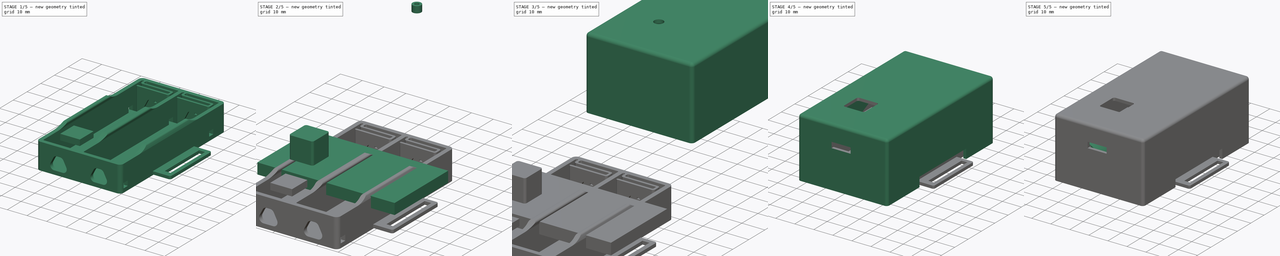
[diagram: build sequence overview — one tinted view per stage of 5, left to right]
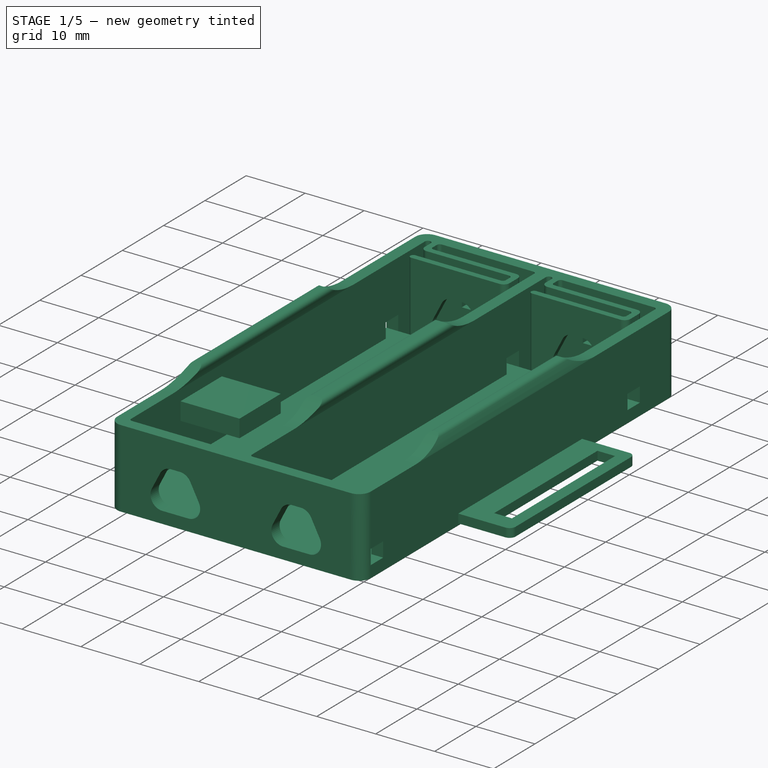
[diagram: stage 1 of 5 — iso view after this stage's code; geometry added in this stage tinted green]
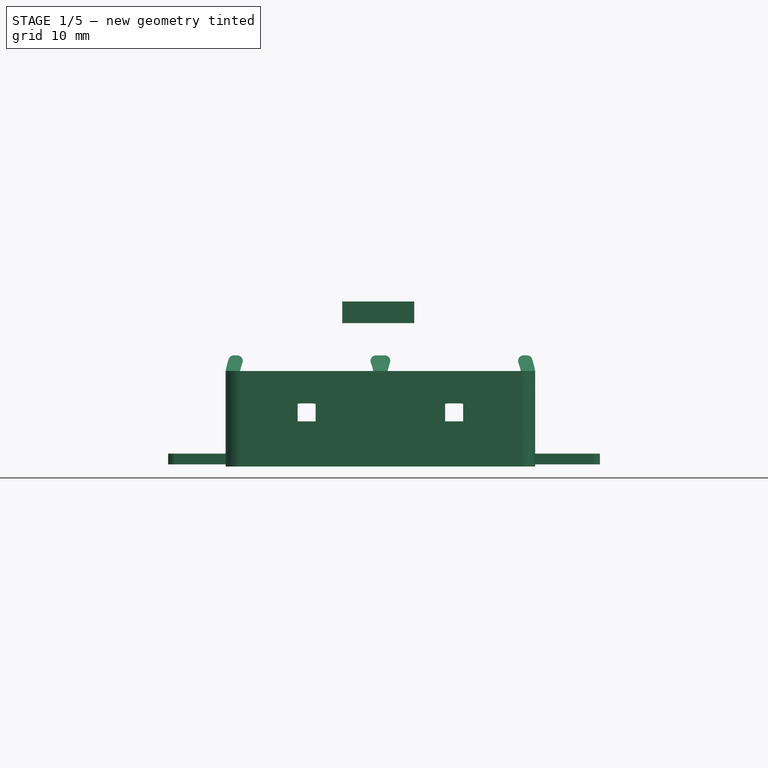
[diagram: stage 1 of 5 — front view after this stage's code; geometry added in this stage tinted green]
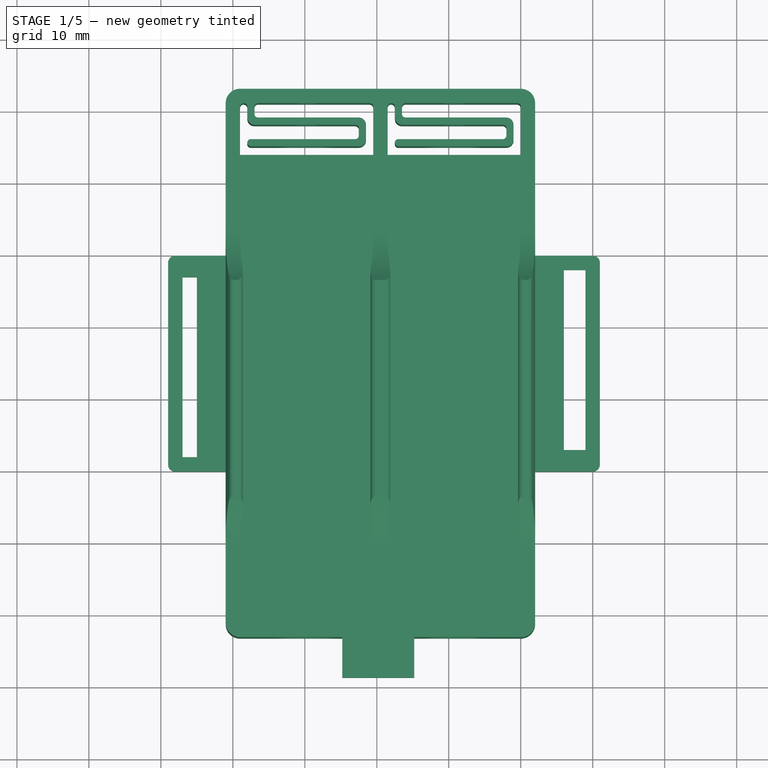
[diagram: stage 1 of 5 — top view after this stage's code; geometry added in this stage tinted green]
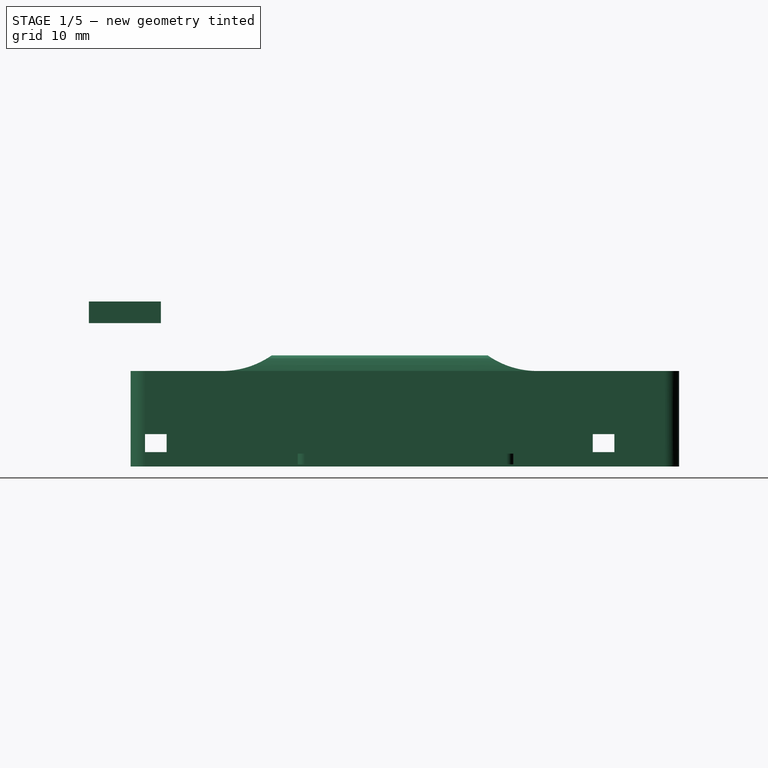
[diagram: stage 1 of 5 — right view after this stage's code; geometry added in this stage tinted green]
FCSTD DOCUMENT  (FreeCAD 0.15R4671 (Git))
Label: porta_baterias_arduino
License: All rights reserved
LicenseURL: http://en.wikipedia.org/wiki/All_rights_reserved
objects: Sketcher::SketchObject×9, Part::Extrusion×6, App::FeaturePython×4, Part::Cut×4, Part::MultiFuse×3, PartDesign::Pad×2, Part::Fillet×2, App::VRMLObject×1, Part::Thickness×1, Part::Cylinder×1, Part::Feature×1, Part::Box×1, App::MeasureDistance×1
note: 32 computed .brp shape members not serialized (recipe doc carries the construction recipe); baked Part::Feature solids carry a one-line shape summary decoded from their .brp

FEATURE [Sketcher::SketchObject] Sketch006
  Placement = pos=(0,0,0.3) rot=(0,0,1;0rad)
  sketch-geometry (12):
    g0: LineSegment StartX=-19 StartY=-80 StartZ=0 EndX=41 EndY=-80 EndZ=0
    g1: LineSegment StartX=41 StartY=-80 StartZ=0 EndX=41 EndY=-110 EndZ=0
    g2: LineSegment StartX=41 StartY=-110 StartZ=0 EndX=-19 EndY=-110 EndZ=0
    g3: LineSegment StartX=-19 StartY=-110 StartZ=0 EndX=-19 EndY=-80 EndZ=0
    g4: LineSegment StartX=39 StartY=-82 StartZ=0 EndX=36 EndY=-82 EndZ=0
    g5: LineSegment StartX=36 StartY=-82 StartZ=0 EndX=36 EndY=-107 EndZ=0
    g6: LineSegment StartX=36 StartY=-107 StartZ=0 EndX=39 EndY=-107 EndZ=0
    g7: LineSegment StartX=39 StartY=-107 StartZ=0 EndX=39 EndY=-82 EndZ=0
    g8: LineSegment StartX=-17 StartY=-83 StartZ=0 EndX=-15 EndY=-83 EndZ=0
    g9: LineSegment StartX=-15 StartY=-83 StartZ=0 EndX=-15 EndY=-108 EndZ=0
    g10: LineSegment StartX=-15 StartY=-108 StartZ=0 EndX=-17 EndY=-108 EndZ=0
    g11: LineSegment StartX=-17 StartY=-108 StartZ=0 EndX=-17 EndY=-83 EndZ=0
  constraints (36):
    c: Coincident(g0,g1)
    c: Coincident(g1,g2)
    c: Coincident(g2,g3)
    c: Coincident(g3,g0)
    c: Horizontal(g0)
    c: Horizontal(g2)
    c: Vertical(g1)
    c: Vertical(g3)
    c: DistanceY(g1) = -30
    c: DistanceX(g0) = 60
    c: DistanceX(g-1,g0) = -19
    c: DistanceY(g-1,g0) = -80
    c: Coincident(g4,g5)
    c: Coincident(g5,g6)
    c: Coincident(g6,g7)
    c: Coincident(g7,g4)
    c: Horizontal(g4)
    c: Horizontal(g6)
    c: Vertical(g5)
    c: Vertical(g7)
    c: DistanceX(g4,g0) = 2
    c: DistanceX(g4) = -3
    c: DistanceY(g7) = 25
    c: Distance(g4,g0) = 2
    c: Coincident(g8,g9)
    c: Coincident(g9,g10)
    c: Coincident(g10,g11)
    c: Coincident(g11,g8)
    c: Horizontal(g8)
    c: Horizontal(g10)
    c: Vertical(g9)
    c: Vertical(g11)
    c: DistanceX(g8) = 2
    c: Distance(g11) = 25
    c: DistanceY(g10,g2) = -2
    c: DistanceX(g8,g0) = -2
FEATURE [Part::Extrusion] Extrude002
  Base = -> Sketch006
  Dir = (0,0,1.5)
  Solid = true
FEATURE [Part::Fillet] Fillet
  Base = -> Extrude002
  Edges = 4 edges r=1: [Edge1,Edge2,Edge5,Edge8]
  Placement = pos=(0,0,-9.09421) rot=(0,0,1;0rad)
FEATURE [Sketcher::SketchObject] Sketch011
  Placement = pos=(0,-139,0) rot=(1,0,0;1.5708rad)
  sketch-geometry (4):
    g0: LineSegment StartX=5.19784 StartY=13.8381 StartZ=0 EndX=15.1978 EndY=13.8381 EndZ=0
    g1: LineSegment StartX=15.1978 StartY=13.8381 StartZ=0 EndX=15.1978 EndY=10.8381 EndZ=0
    g2: LineSegment StartX=15.1978 StartY=10.8381 StartZ=0 EndX=5.19784 EndY=10.8381 EndZ=0
    g3: LineSegment StartX=5.19784 StartY=10.8381 StartZ=0 EndX=5.19784 EndY=13.8381 EndZ=0
  constraints (10):
    c: Horizontal(g0)
    c: Horizontal(g2)
    c: Vertical(g1)
    c: Vertical(g3)
    c: DistanceY(g0,g2) = -3
    c: DistanceX(g1,g3) = -10
    c: Coincident(g0,g1)
    c: Coincident(g1,g2)
    c: Coincident(g0,g3)
    c: Coincident(g2,g3)
FEATURE [Part::Extrusion] Extrude005
  Base = -> Sketch011
  Dir = (0,10,0)
  Solid = true
FEATURE [Part::MultiFuse] Fusion003
  Shapes = -> [Solid,Fillet]
FEATURE [App::MeasureDistance] Distance  label="Distance: 1.500"
  Distance = 1.50013
  P1 = (33,-111.449,-9.09421)
  P2 = (34.5,-111.429,-9.09421)
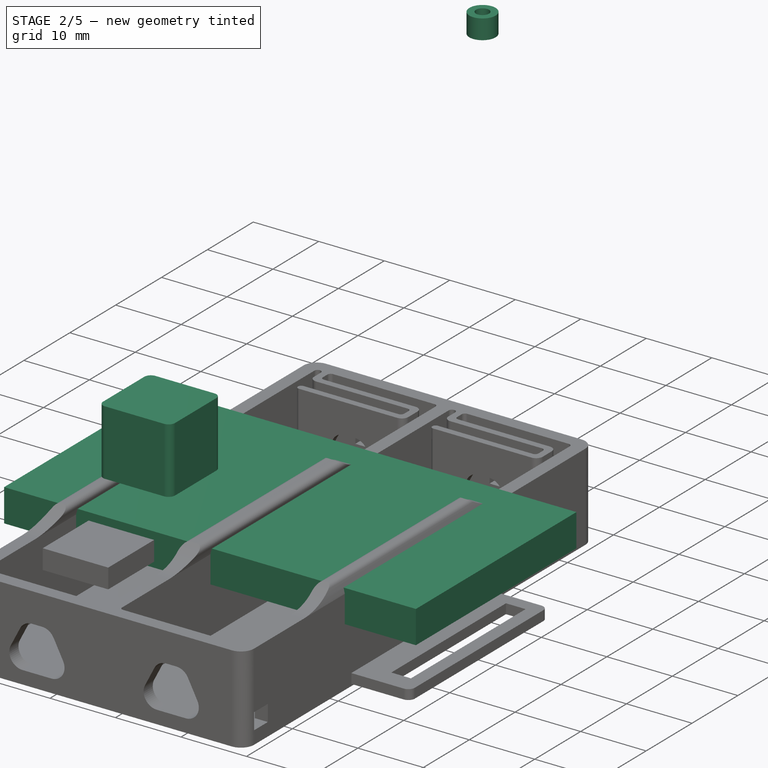
[diagram: stage 2 of 5 — iso view after this stage's code; geometry added in this stage tinted green]
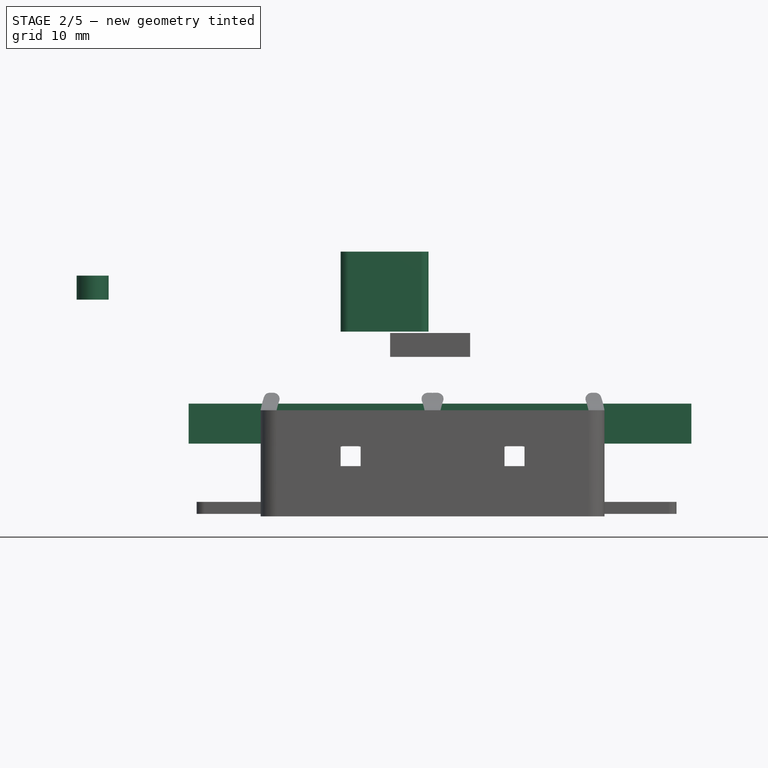
[diagram: stage 2 of 5 — front view after this stage's code; geometry added in this stage tinted green]
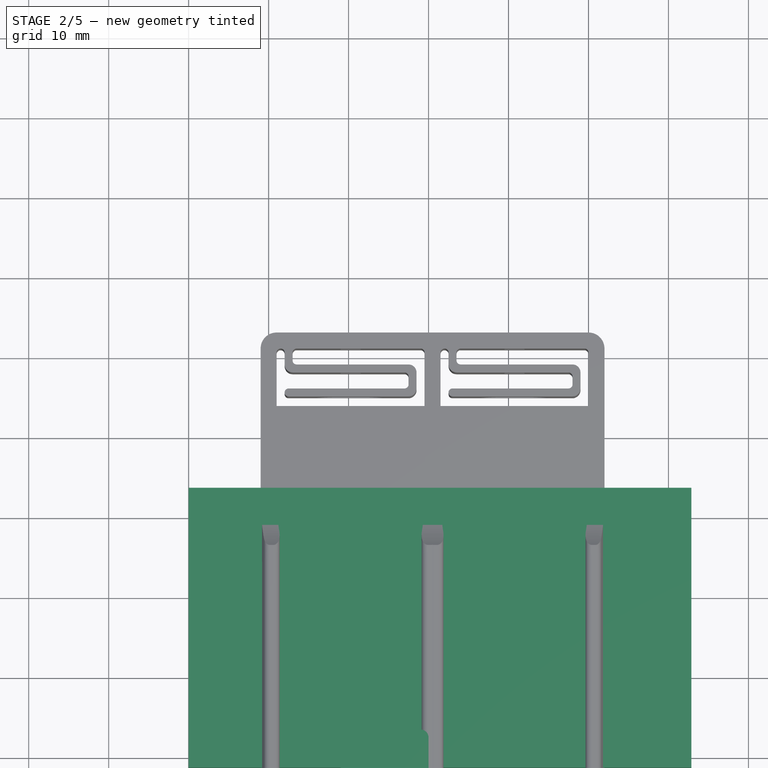
[diagram: stage 2 of 5 — top view after this stage's code; geometry added in this stage tinted green]
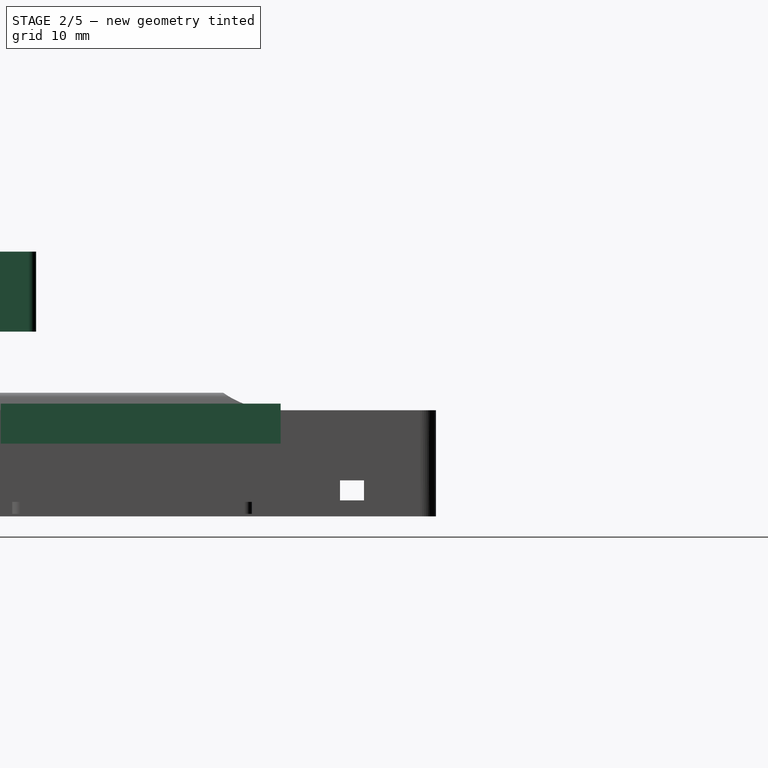
[diagram: stage 2 of 5 — right view after this stage's code; geometry added in this stage tinted green]
FEATURE [Sketcher::SketchObject] Sketch005
  Placement = pos=(0,0,21) rot=(1,0,0;3.14159rad)
  sketch-geometry (2):
    g0: Circle CenterX=-32 CenterY=-10 CenterZ=0 NormalX=0 NormalY=0 NormalZ=1 Radius=2
    g1: Circle CenterX=-32 CenterY=-10 CenterZ=0 NormalX=0 NormalY=0 NormalZ=1 Radius=1
  constraints (5):
    c: DistanceX(g-1,g0) = -32
    c: DistanceY(g-1,g0) = -10
    c: Radius(g0) = 2
    c: Coincident(g0,g1)
    c: Radius(g1) = 1
FEATURE [PartDesign::Pad] Pad001
  Length = 3
  Length2 = 100
  Placement = pos=(0,0,21) rot=(1,0,0;3.14159rad)
  Sketch = -> Sketch005
  Type = 0
FEATURE [Sketcher::SketchObject] Sketch007
  sketch-geometry (4):
    g0: LineSegment StartX=-20 StartY=-76.4294 StartZ=0 EndX=42.8586 EndY=-76.4294 EndZ=0
    g1: LineSegment StartX=42.8586 StartY=-76.4294 StartZ=0 EndX=42.8586 EndY=-111.429 EndZ=0
    g2: LineSegment StartX=42.8586 StartY=-111.429 StartZ=0 EndX=-20 EndY=-111.429 EndZ=0
    g3: LineSegment StartX=-20 StartY=-111.429 StartZ=0 EndX=-20 EndY=-76.4294 EndZ=0
  constraints (10):
    c: Coincident(g0,g1)
    c: Coincident(g1,g2)
    c: Coincident(g2,g3)
    c: Coincident(g3,g0)
    c: Horizontal(g0)
    c: Horizontal(g2)
    c: Vertical(g1)
    c: Vertical(g3)
    c: DistanceY(g1) = -35
    c: DistanceX(g0) = 62.8586
FEATURE [Part::Extrusion] Extrude003
  Base = -> Sketch007
  Dir = (0,0,5)
  Solid = true
FEATURE [App::FeaturePython] planeConstraint01  # a2plus constraint (typed FeaturePython)
  Object1 = Fusion
  Object2 = Solid
  SubElement1 = Face9
  SubElement2 = Face2315
  Type = plane
  directionConstraint = 1
  offset = 0
FEATURE [App::FeaturePython] planeConstraint02  # a2plus constraint (typed FeaturePython)
  Object1 = Fillet
  Object2 = Cut001
  SubElement1 = Face2
  SubElement2 = Face11
  Type = plane
  directionConstraint = 0
  offset = 0
FEATURE [Part::Feature] Solid
  Placement = pos=(-99.75,-91.555,-39.4692) rot=(0,0,1;0rad)
  shape: bbox 43 x 76.2 x 15.45 mm, 4079 faces (baked)
FEATURE [Part::Box] Box  label="Cubo"
  Height = 10
  Length = 11
  Width = 11
FEATURE [Part::Fillet] Fillet001
  Base = -> Box
  Edges = 4 edges r=1: [Edge1,Edge3,Edge5,Edge7]
  Placement = pos=(-1,-118,14) rot=(0,0,1;0rad)
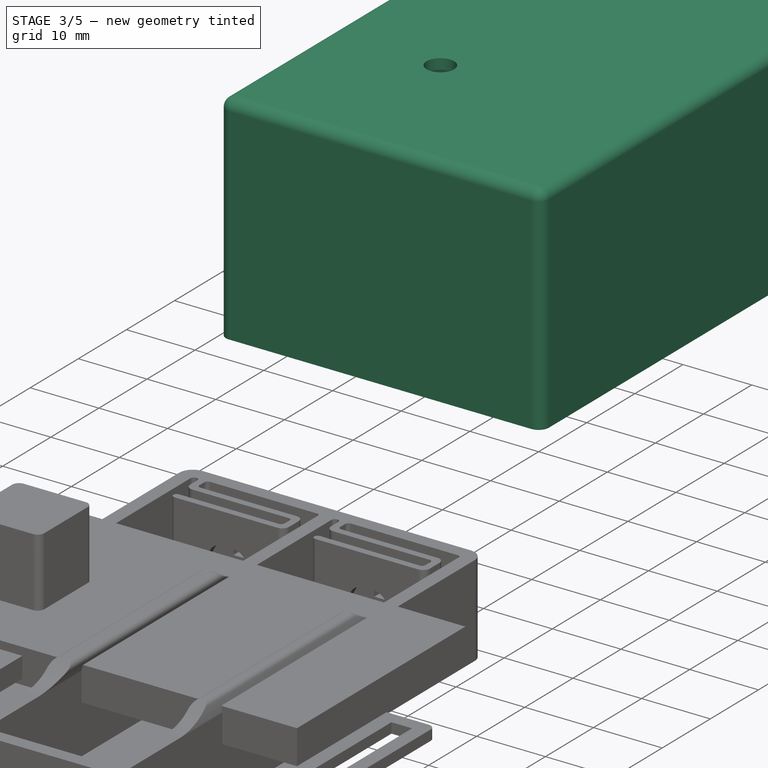
[diagram: stage 3 of 5 — iso view after this stage's code; geometry added in this stage tinted green]
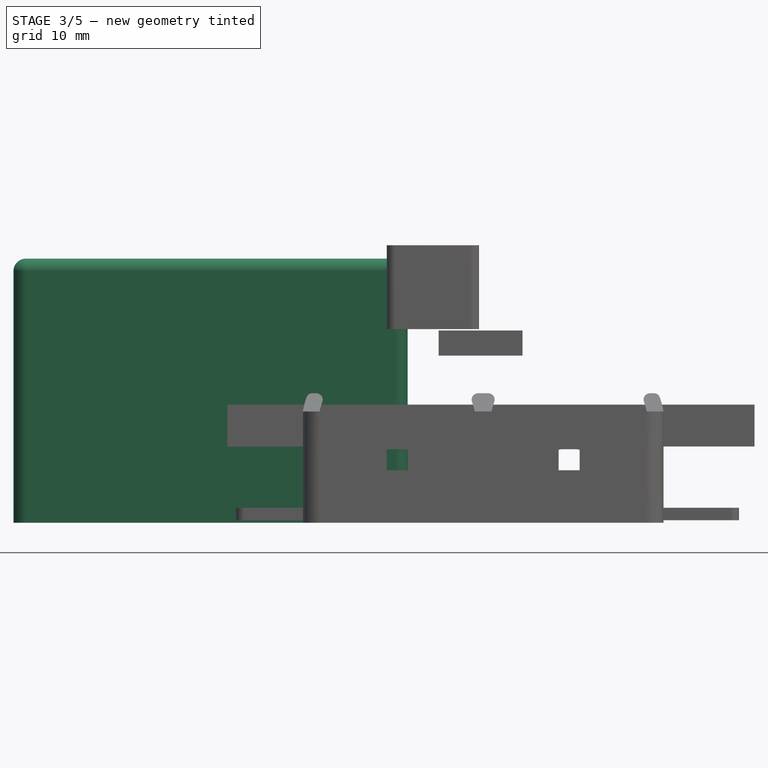
[diagram: stage 3 of 5 — front view after this stage's code; geometry added in this stage tinted green]
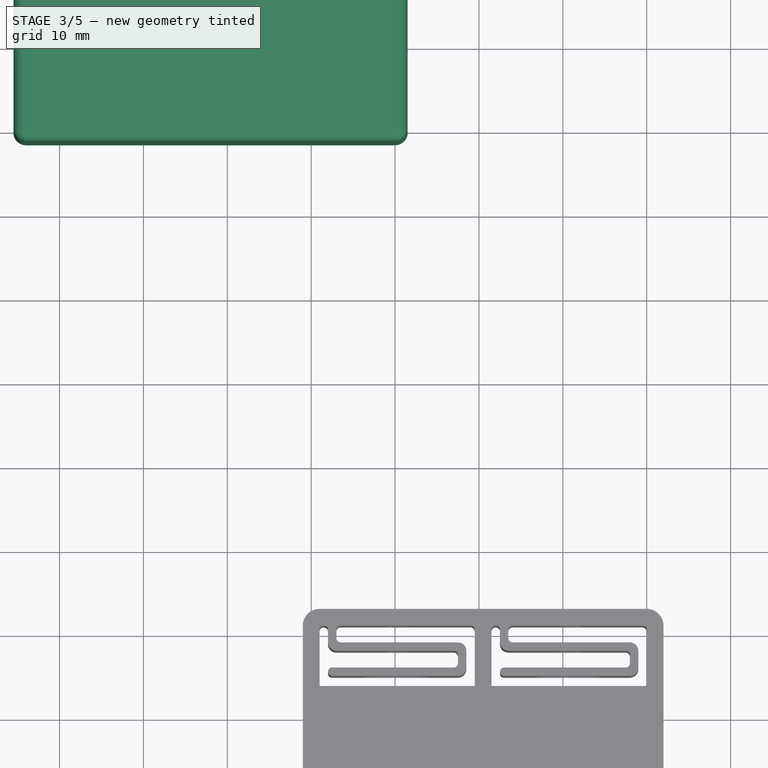
[diagram: stage 3 of 5 — top view after this stage's code; geometry added in this stage tinted green]
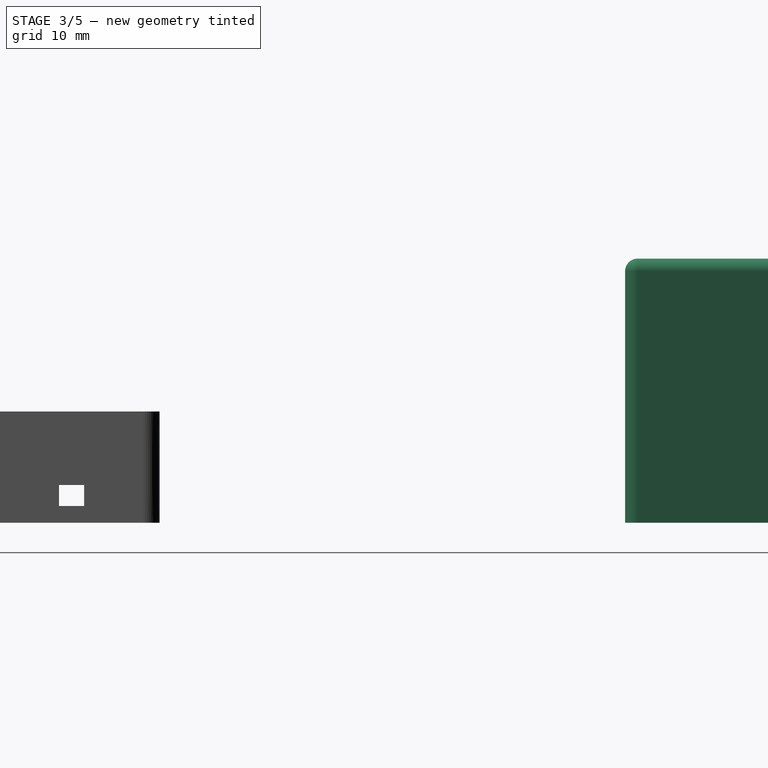
[diagram: stage 3 of 5 — right view after this stage's code; geometry added in this stage tinted green]
FEATURE [Sketcher::SketchObject] Sketch003  label="tapa"
  Placement = pos=(0,0,0) rot=(0,1,0;3.14159rad)
  sketch-geometry (4):
    g0: LineSegment StartX=0 StartY=0 StartZ=0 EndX=44 EndY=0 EndZ=0
    g1: LineSegment StartX=44 StartY=0 StartZ=0 EndX=44 EndY=77 EndZ=0
    g2: LineSegment StartX=44 StartY=77 StartZ=0 EndX=0 EndY=77 EndZ=0
    g3: LineSegment StartX=0 StartY=77 StartZ=0 EndX=0 EndY=0 EndZ=0
  constraints (11):
    c: Coincident(g0,g1)
    c: Coincident(g1,g2)
    c: Coincident(g2,g3)
    c: Coincident(g3,g0)
    c: Horizontal(g0)
    c: Horizontal(g2)
    c: Vertical(g1)
    c: Vertical(g3)
    c: Coincident(g0,g-1)
    c: DistanceX(g0) = 44
    c: DistanceY(g3) = -77
FEATURE [PartDesign::Pad] Pad
  Length = 30
  Length2 = 100
  Placement = pos=(0,0,0) rot=(0,1,0;3.14159rad)
  Sketch = -> Sketch003
  Type = 0
FEATURE [Part::Thickness] Thickness
  Faces = -> Pad [Face6]
  Intersection = false
  Join = 0
  Mode = 0
  Placement = pos=(8.83644e-06,2.5957e-05,20.9056) rot=(0,0,1;0rad)
  SelfIntersection = false
  Value = 1.5
FEATURE [App::FeaturePython] planeConstraint  # a2plus constraint (typed FeaturePython)
  Object1 = Solid
  Object2 = Thickness
  SubElement1 = Face1680
  SubElement2 = Face6
  Type = plane
  directionConstraint = 1
  offset = 0
FEATURE [Part::Cylinder] Cylinder  label="Cilindro"
  Angle = 360
  Height = 40
  Placement = pos=(-29,21,-2) rot=(0,0,1;0rad)
  Radius = 2
FEATURE [Part::Cut] Cut
  Base = -> Thickness
  Tool = -> Cylinder
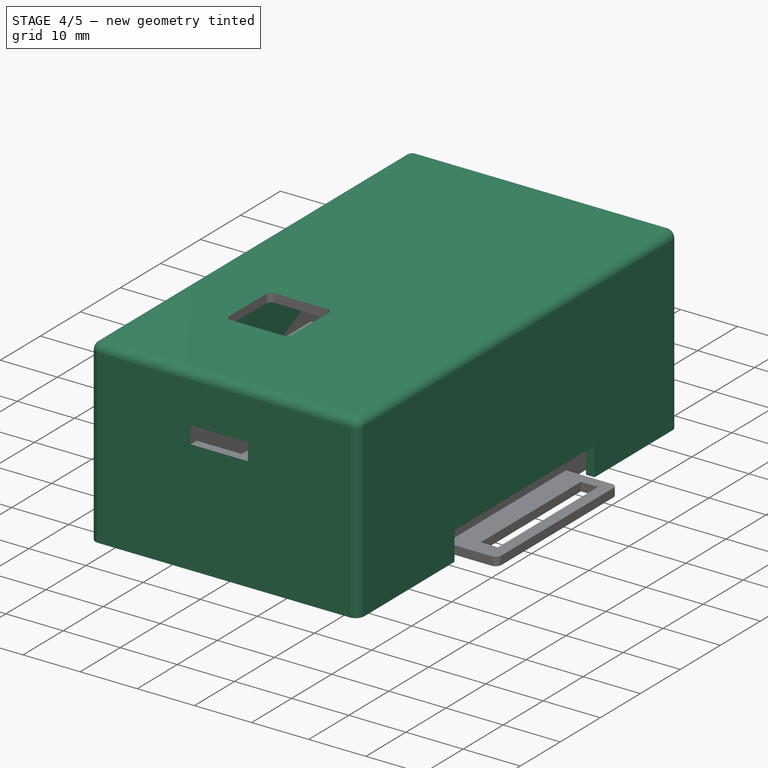
[diagram: stage 4 of 5 — iso view after this stage's code; geometry added in this stage tinted green]
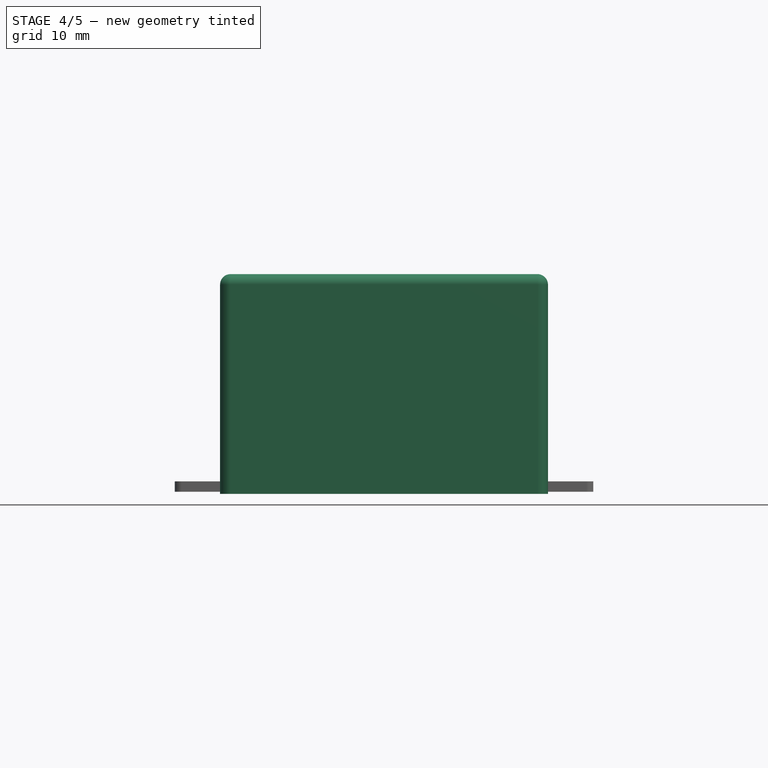
[diagram: stage 4 of 5 — front view after this stage's code; geometry added in this stage tinted green]
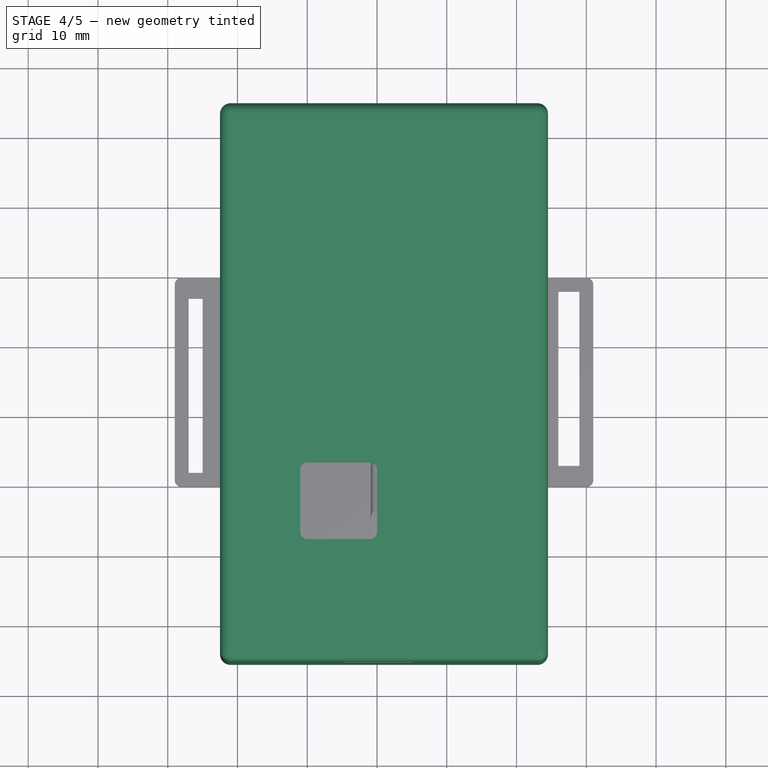
[diagram: stage 4 of 5 — top view after this stage's code; geometry added in this stage tinted green]
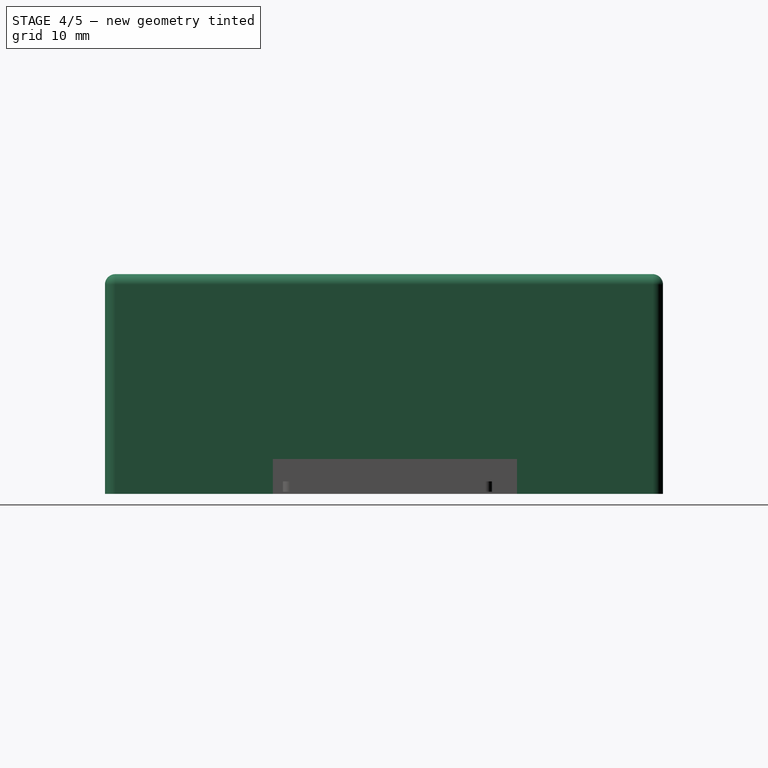
[diagram: stage 4 of 5 — right view after this stage's code; geometry added in this stage tinted green]
FEATURE [Part::MultiFuse] Fusion
  Placement = pos=(33,-134,9.09435) rot=(0,0,1;0rad)
  Shapes = -> [Pad001,Cut]
FEATURE [Part::Cut] Cut001
  Base = -> Fusion
  Placement = pos=(0,0,-9.09421) rot=(0,0,1;0rad)
  Tool = -> Extrude003
FEATURE [Part::Cut] Cut002
  Base = -> Cut001
  Tool = -> Fillet001
FEATURE [Part::Cut] Cut003
  Base = -> Cut002
  Tool = -> Extrude005
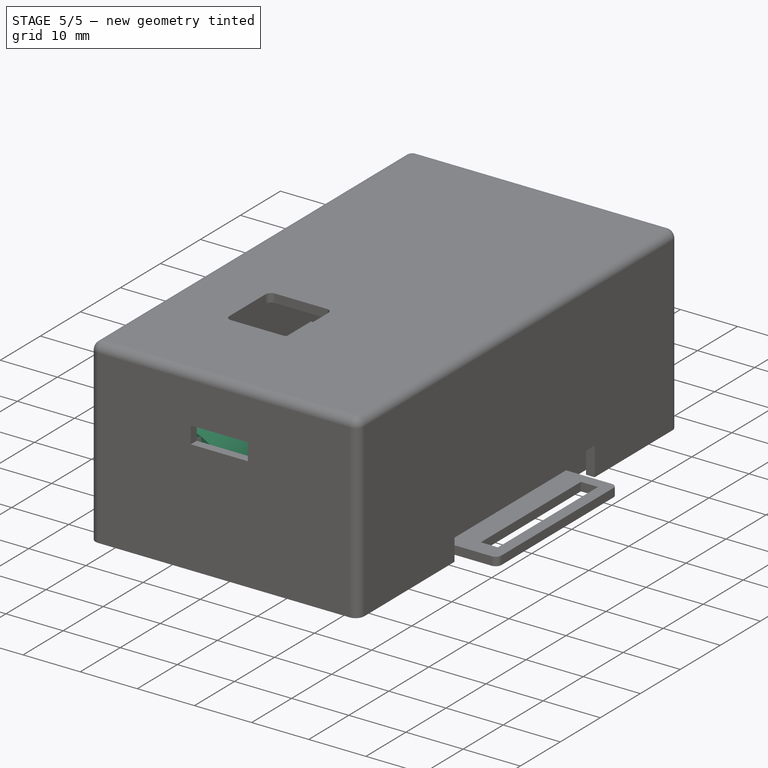
[diagram: stage 5 of 5 — iso view after this stage's code; geometry added in this stage tinted green]
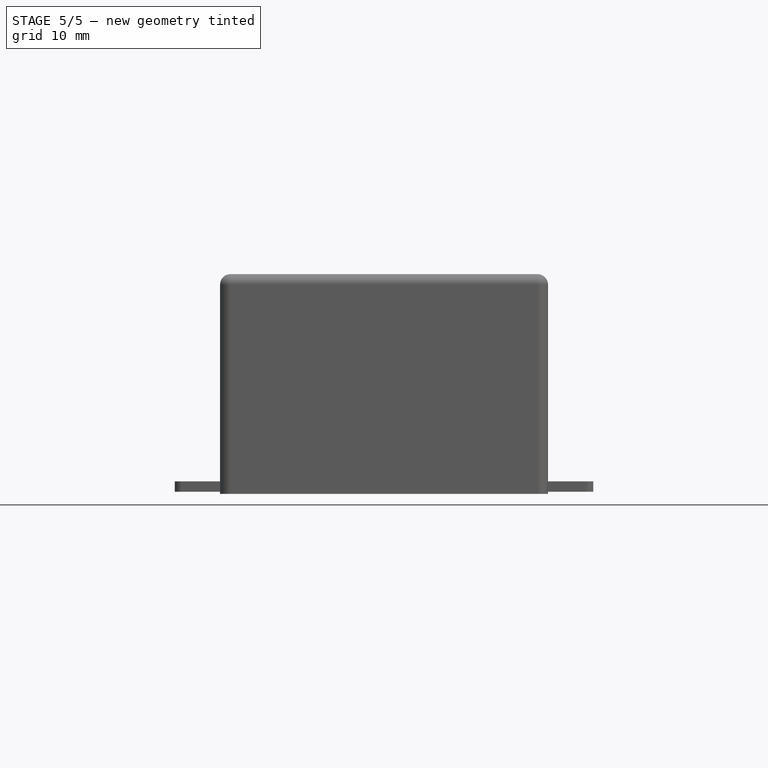
[diagram: stage 5 of 5 — front view after this stage's code; geometry added in this stage tinted green]
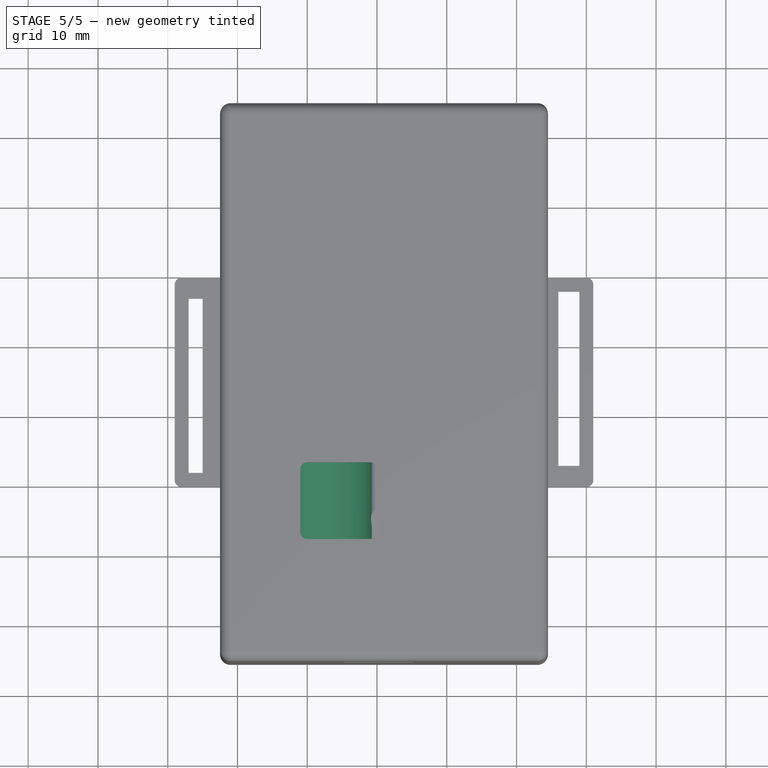
[diagram: stage 5 of 5 — top view after this stage's code; geometry added in this stage tinted green]
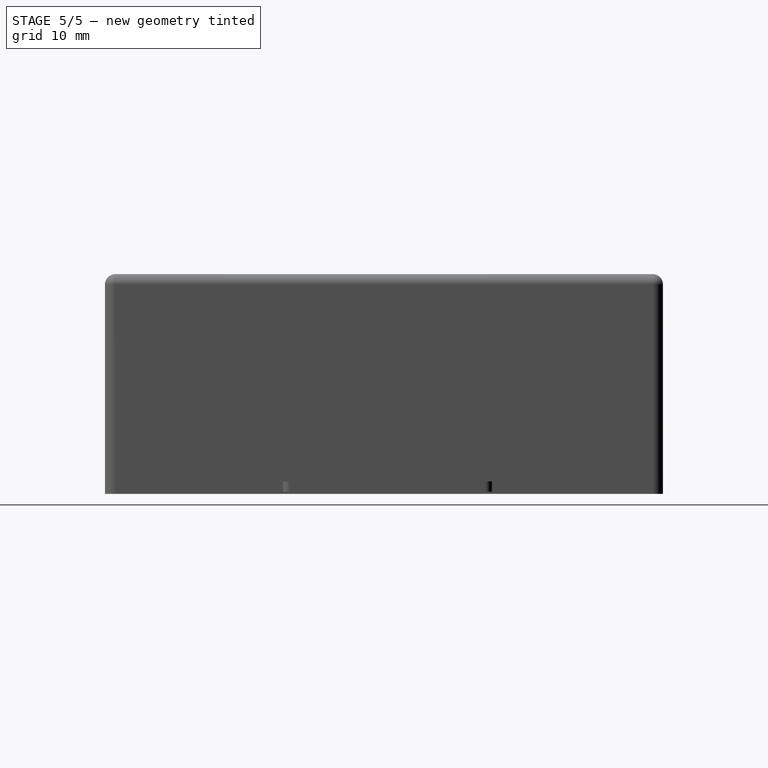
[diagram: stage 5 of 5 — right view after this stage's code; geometry added in this stage tinted green]
FEATURE [Sketcher::SketchObject] Sketch
FEATURE [App::VRMLObject] FRTOSlight
  Placement = pos=(56.8,-54.6,17) rot=(0,1,0;3.14159rad)
FEATURE [Sketcher::SketchObject] Sketch001
  Placement = pos=(0,0,0) rot=(1,0,0;1.5708rad)
  sketch-geometry (1):
    g0: Circle CenterX=0 CenterY=0 CenterZ=0 NormalX=0 NormalY=0 NormalZ=1 Radius=9
  constraints (2):
    c: Coincident(g0,g-1)
    c: Radius(g0) = 9
FEATURE [Part::Extrusion] Extrude
  Base = -> Sketch001
  Dir = (0,65,0)
  Placement = pos=(0.25,-131.2,1.92584) rot=(0,0,1;0rad)
  Solid = true
FEATURE [App::FeaturePython] circularEdgeConstraint01  # a2plus constraint (typed FeaturePython)
  Object1 = Solid
  Object2 = Extrude
  SubElement1 = Face3364
  SubElement2 = Face2
  Type = circularEdge
  directionConstraint = 0
  lockRotation = false
  offset = 0
FEATURE [Sketcher::SketchObject] Sketch002
  Placement = pos=(0,0,0) rot=(1,0,0;1.5708rad)
  sketch-geometry (1):
    g0: Circle CenterX=0 CenterY=0 CenterZ=0 NormalX=0 NormalY=0 NormalZ=1 Radius=9
  constraints (2):
    c: Coincident(g0,g-1)
    c: Radius(g0) = 9
FEATURE [Part::Extrusion] Extrude001
  Base = -> Sketch002
  Dir = (0,65,0)
  Placement = pos=(20.7,-131.2,1.92584) rot=(0,0,1;0rad)
  Solid = true
FEATURE [Sketcher::SketchObject] Sketch009
  Placement = pos=(15,0,0) rot=(0.57735,0.57735,0.57735;2.0944rad)
  sketch-geometry (8):
    g0: LineSegment StartX=-79.325 StartY=21 StartZ=0 EndX=-79.325 EndY=15 EndZ=0
    g1: LineSegment StartX=-79.325 StartY=15 StartZ=0 EndX=-82.325 EndY=15 EndZ=0
    g2: LineSegment StartX=-82.325 StartY=15 StartZ=0 EndX=-82.325 EndY=16 EndZ=0
    g3: LineSegment StartX=-82.325 StartY=16 StartZ=0 EndX=-81.325 EndY=16 EndZ=0
    g4: LineSegment StartX=-81.325 StartY=16 StartZ=0 EndX=-81.325 EndY=18 EndZ=0
    g5: LineSegment StartX=-81.325 StartY=18 StartZ=0 EndX=-83.325 EndY=18 EndZ=0
    g6: LineSegment StartX=-83.325 StartY=18 StartZ=0 EndX=-83.325 EndY=21 EndZ=0
    g7: LineSegment StartX=-83.325 StartY=21 StartZ=0 EndX=-79.325 EndY=21 EndZ=0
  constraints (22):
    c: Coincident(g4,g5)
    c: Coincident(g5,g6)
    c: Coincident(g6,g7)
    c: Coincident(g0,g7)
    c: Coincident(g3,g4)
    c: Coincident(g2,g3)
    c: Vertical(g2)
    c: Vertical(g4)
    c: Vertical(g6)
    c: Vertical(g0)
    c: Horizontal(g7)
    c: Horizontal(g5)
    c: Horizontal(g3)
    c: Horizontal(g1)
    c: DistanceY(g6) = 3
    c: DistanceY(g0) = -6
    c: DistanceX(g5) = -2
    c: DistanceY(g4) = 2
    c: DistanceX(g3) = 1
    c: Coincident(g0,g1)
    c: Coincident(g1,g2)
    c: DistanceX(g1) = -3
FEATURE [Part::Extrusion] Extrude004
  Base = -> Sketch009
  Dir = (5,0,0)
  Solid = true
FEATURE [Part::MultiFuse] Fusion002
  Shapes = -> [Extrude004,Cut003]
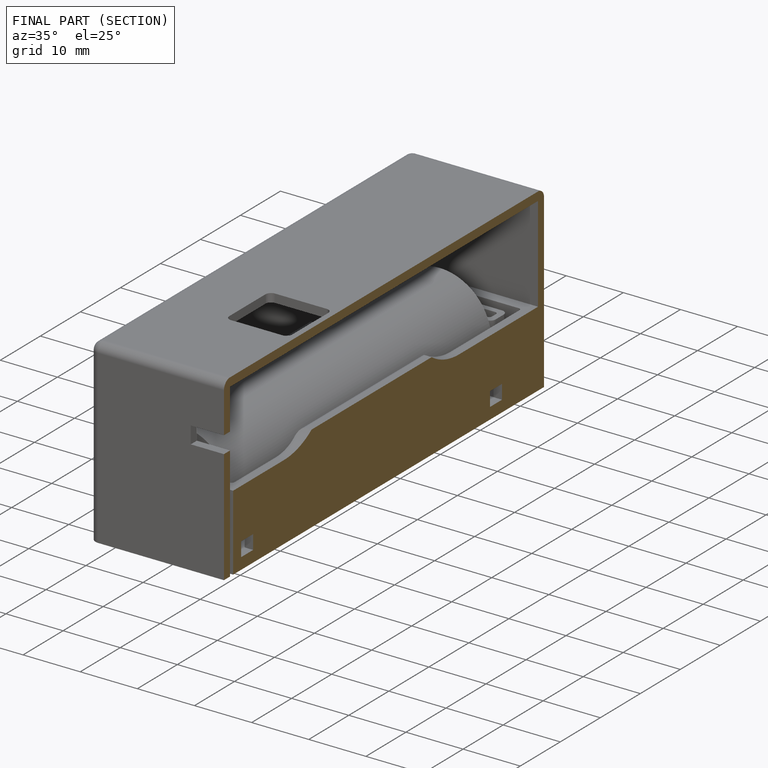
[diagram: finished part — half-section view (interior)]
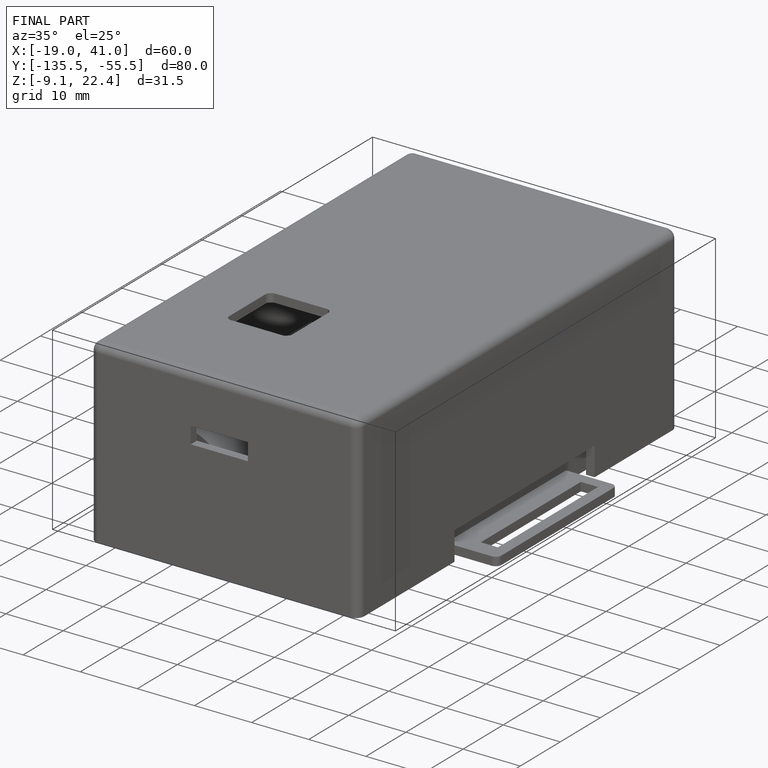
[diagram: finished part — iso view with bounding-box wireframe]
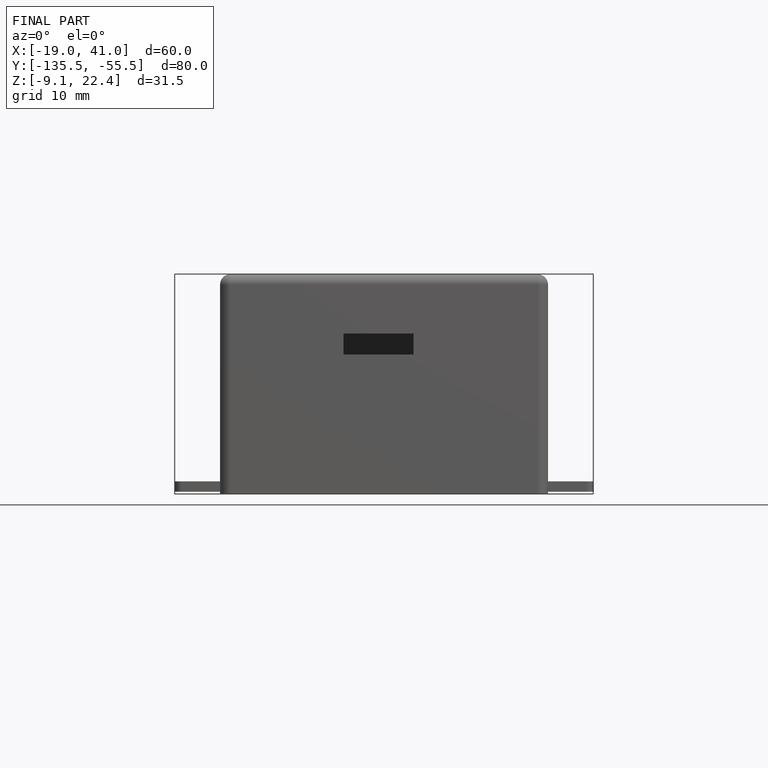
[diagram: finished part — front view with bounding-box wireframe]
